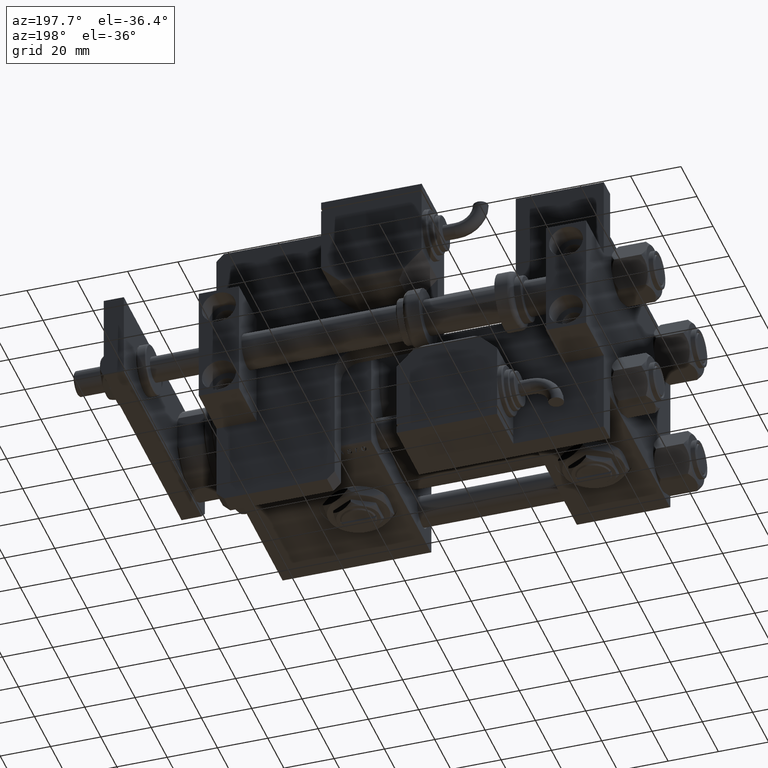
[diagram: clean part render]
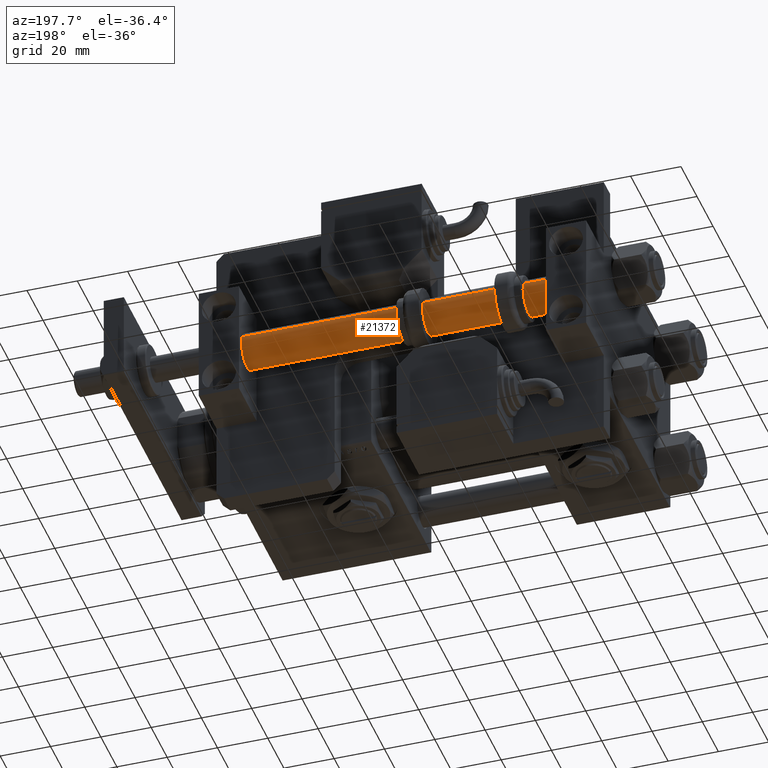
[diagram: same view with one face highlighted and labeled with its STEP entity id]
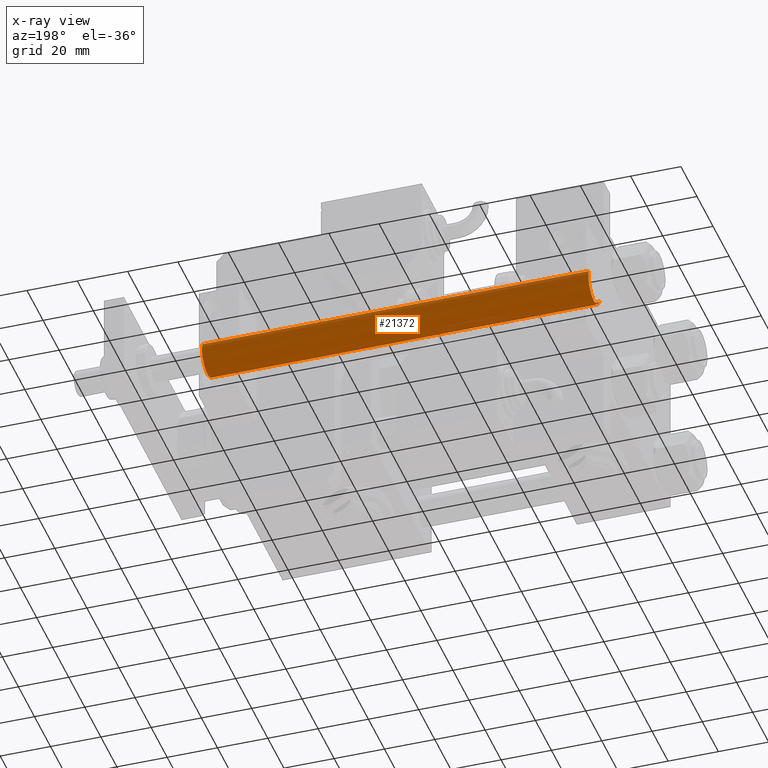
[diagram: x-ray of the same camera — body ghosted, the highlighted face saturated]
A machine part, auxiliary view. The second image highlights one B-rep face of the part: STEP entity #21372.
The next image is the same camera in x-ray: the body ghosted, the highlighted face saturated — about 0% of this face is hidden behind the body in this view.
In plain terms, the highlighted cylindrical surface (edge-blend (fillet) strip) has radius 7 mm, axis along (1, 0, 0).
Its self-contained STEP definition (entity closure, byte-faithful):
#1331 = VERTEX_POINT ( 'NONE', #37359 ) ;
#2418 = VERTEX_POINT ( 'NONE', #9776 ) ;
#3029 = AXIS2_PLACEMENT_3D ( 'NONE', #24644, #29347, #15280 ) ;
#6095 = VERTEX_POINT ( 'NONE', #42737 ) ;
#8070 = LINE ( 'NONE', #12178, #46899 ) ;
#9776 = CARTESIAN_POINT ( 'NONE',  ( 7.000000000000000000, 8.572527594031473190E-16, 154.0000000000000000 ) ) ;
#10714 = EDGE_CURVE ( 'NONE', #41918, #1331, #8070, .T. ) ;
#12178 = CARTESIAN_POINT ( 'NONE',  ( -7.000000000000000000, 0.000000000000000000, 154.0000000000000000 ) ) ;
#12249 = CARTESIAN_POINT ( 'NONE',  ( 0.000000000000000000, 0.000000000000000000, 0.2999999999999947153 ) ) ;
#13042 = DIRECTION ( 'NONE',  ( -0.000000000000000000, -0.000000000000000000, -1.000000000000000000 ) ) ;
#13530 = AXIS2_PLACEMENT_3D ( 'NONE', #34111, #16521, #52006 ) ;
#14350 = CARTESIAN_POINT ( 'NONE',  ( -7.000000000000000000, 0.000000000000000000, 154.0000000000000000 ) ) ;
#15280 = DIRECTION ( 'NONE',  ( 1.000000000000000000, 0.000000000000000000, 0.000000000000000000 ) ) ;
#16238 = CYLINDRICAL_SURFACE ( 'NONE', #13530, 7.000000000000000000 ) ;
#16521 = DIRECTION ( 'NONE',  ( -0.000000000000000000, -0.000000000000000000, -1.000000000000000000 ) ) ;
#18013 = CARTESIAN_POINT ( 'NONE',  ( 7.000000000000000000, 8.572527594031473190E-16, 154.0000000000000000 ) ) ;
#21372 = ADVANCED_FACE ( 'NONE', ( #52869 ), #16238, .T. ) ;
#21436 = ORIENTED_EDGE ( 'NONE', *, *, #41768, .F. ) ;
#22084 = CIRCLE ( 'NONE', #50181, 7.000000000000000000 ) ;
#24526 = EDGE_CURVE ( 'NONE', #2418, #6095, #53202, .T. ) ;
#24644 = CARTESIAN_POINT ( 'NONE',  ( 0.000000000000000000, 0.000000000000000000, 154.0000000000000000 ) ) ;
#25409 = EDGE_CURVE ( 'NONE', #6095, #1331, #22084, .T. ) ;
#25427 = DIRECTION ( 'NONE',  ( -0.000000000000000000, -0.000000000000000000, 1.000000000000000000 ) ) ;
#27581 = ORIENTED_EDGE ( 'NONE', *, *, #10714, .F. ) ;
#28078 = ORIENTED_EDGE ( 'NONE', *, *, #24526, .T. ) ;
#29347 = DIRECTION ( 'NONE',  ( 0.000000000000000000, 0.000000000000000000, 1.000000000000000000 ) ) ;
#30463 = VECTOR ( 'NONE', #13042, 1000.000000000000000 ) ;
#34111 = CARTESIAN_POINT ( 'NONE',  ( 0.000000000000000000, 0.000000000000000000, 154.0000000000000000 ) ) ;
#37359 = CARTESIAN_POINT ( 'NONE',  ( -7.000000000000000000, 0.000000000000000000, 0.2999999999999947153 ) ) ;
#37533 = EDGE_LOOP ( 'NONE', ( #21436, #28078, #51088, #27581 ) ) ;
#41768 = EDGE_CURVE ( 'NONE', #2418, #41918, #51683, .T. ) ;
#41918 = VERTEX_POINT ( 'NONE', #14350 ) ;
#42737 = CARTESIAN_POINT ( 'NONE',  ( 7.000000000000000000, 8.572527594031473190E-16, 0.2999999999999947153 ) ) ;
#43318 = DIRECTION ( 'NONE',  ( 1.000000000000000000, 0.000000000000000000, 0.000000000000000000 ) ) ;
#46899 = VECTOR ( 'NONE', #52914, 1000.000000000000000 ) ;
#50181 = AXIS2_PLACEMENT_3D ( 'NONE', #12249, #25427, #43318 ) ;
#51088 = ORIENTED_EDGE ( 'NONE', *, *, #25409, .T. ) ;
#51683 = CIRCLE ( 'NONE', #3029, 7.000000000000000000 ) ;
#52006 = DIRECTION ( 'NONE',  ( -1.000000000000000000, 0.000000000000000000, 0.000000000000000000 ) ) ;
#52869 = FACE_OUTER_BOUND ( 'NONE', #37533, .T. ) ;
#52914 = DIRECTION ( 'NONE',  ( -0.000000000000000000, -0.000000000000000000, -1.000000000000000000 ) ) ;
#53202 = LINE ( 'NONE', #18013, #30463 ) ;